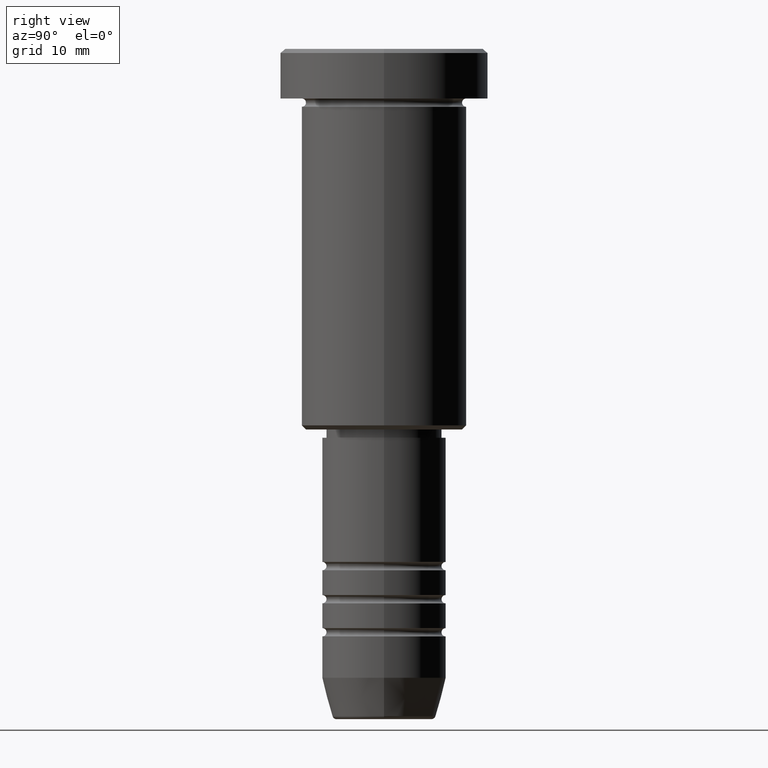
[diagram: clean part render]
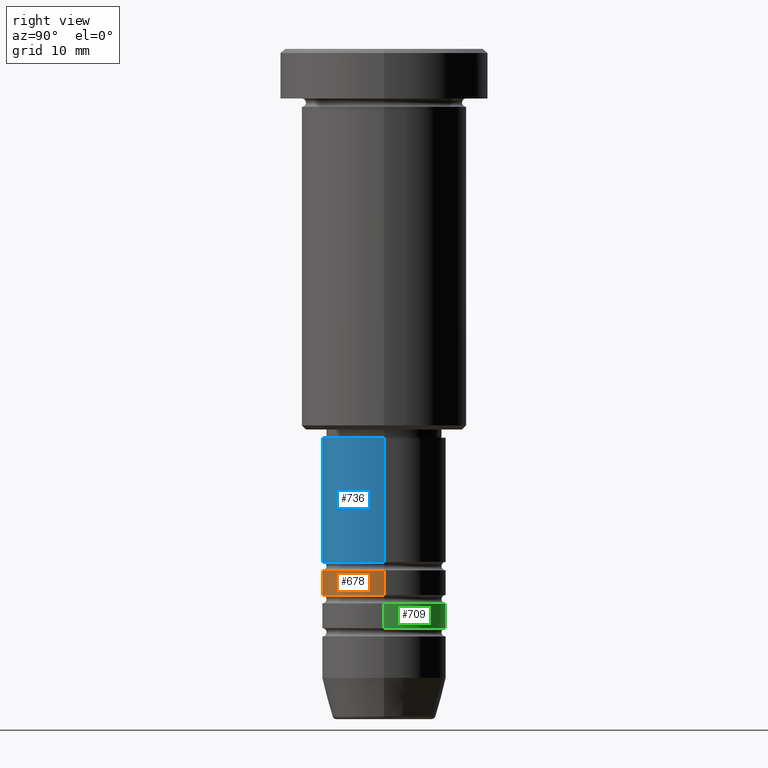
[diagram: same view with three faces highlighted in distinct colors, each labeled with its STEP entity id]
A machine part, right view with three faces highlighted in distinct colors.
Their STEP definitions:

[orange] entity #678 — the highlighted cylindrical surface (partial cylindrical patch) has radius 7.5 mm, axis along (-0, -0, 1).
#1 = EDGE_CURVE ( 'NONE', #1157, #242, #712, .T. ) ;
#9 = AXIS2_PLACEMENT_3D ( 'NONE', #338, #615, #981 ) ;
#24 = EDGE_CURVE ( 'NONE', #491, #242, #238, .T. ) ;
#48 = DIRECTION ( 'NONE',  ( -0.000000000000000000, -0.000000000000000000, 1.000000000000000000 ) ) ;
#76 = FACE_OUTER_BOUND ( 'NONE', #989, .T. ) ;
#109 = VECTOR ( 'NONE', #626, 1000.000000000000000 ) ;
#132 = CIRCLE ( 'NONE', #282, 7.500000000000002665 ) ;
#226 = VECTOR ( 'NONE', #48, 1000.000000000000000 ) ;
#230 = CARTESIAN_POINT ( 'NONE',  ( 7.500000000000000000, 0.000000000000000000, -62.99999999999990052 ) ) ;
#238 = CIRCLE ( 'NONE', #395, 7.500000000000000000 ) ;
#242 = VERTEX_POINT ( 'NONE', #230 ) ;
#251 = CARTESIAN_POINT ( 'NONE',  ( -7.500000000000000000, 9.184850993605147944E-16, -62.99999999999990052 ) ) ;
#282 = AXIS2_PLACEMENT_3D ( 'NONE', #490, #1119, #301 ) ;
#301 = DIRECTION ( 'NONE',  ( 1.000000000000000000, 0.000000000000000000, 0.000000000000000000 ) ) ;
#324 = ORIENTED_EDGE ( 'NONE', *, *, #1027, .T. ) ;
#338 = CARTESIAN_POINT ( 'NONE',  ( 0.000000000000000000, 0.000000000000000000, 0.000000000000000000 ) ) ;
#395 = AXIS2_PLACEMENT_3D ( 'NONE', #916, #977, #436 ) ;
#409 = LINE ( 'NONE', #1139, #226 ) ;
#425 = ORIENTED_EDGE ( 'NONE', *, *, #585, .F. ) ;
#426 = CYLINDRICAL_SURFACE ( 'NONE', #9, 7.500000000000001776 ) ;
#436 = DIRECTION ( 'NONE',  ( 1.000000000000000000, 0.000000000000000000, 0.000000000000000000 ) ) ;
#463 = ORIENTED_EDGE ( 'NONE', *, *, #24, .F. ) ;
#490 = CARTESIAN_POINT ( 'NONE',  ( 0.000000000000000000, 0.000000000000000000, -65.99999999999991473 ) ) ;
#491 = VERTEX_POINT ( 'NONE', #251 ) ;
#585 = EDGE_CURVE ( 'NONE', #799, #491, #409, .T. ) ;
#615 = DIRECTION ( 'NONE',  ( -0.000000000000000000, -0.000000000000000000, 1.000000000000000000 ) ) ;
#626 = DIRECTION ( 'NONE',  ( -0.000000000000000000, -0.000000000000000000, 1.000000000000000000 ) ) ;
#678 = ADVANCED_FACE ( 'NONE', ( #76 ), #426, .T. ) ;
#712 = LINE ( 'NONE', #986, #109 ) ;
#786 = ORIENTED_EDGE ( 'NONE', *, *, #1, .T. ) ;
#799 = VERTEX_POINT ( 'NONE', #894 ) ;
#894 = CARTESIAN_POINT ( 'NONE',  ( -7.500000000000003553, 9.184850993605151889E-16, -65.99999999999991473 ) ) ;
#916 = CARTESIAN_POINT ( 'NONE',  ( 0.000000000000000000, 0.000000000000000000, -62.99999999999990052 ) ) ;
#977 = DIRECTION ( 'NONE',  ( -0.000000000000000000, -0.000000000000000000, 1.000000000000000000 ) ) ;
#981 = DIRECTION ( 'NONE',  ( 1.000000000000000000, 0.000000000000000000, 0.000000000000000000 ) ) ;
#986 = CARTESIAN_POINT ( 'NONE',  ( 7.500000000000001776, 0.000000000000000000, 0.000000000000000000 ) ) ;
#989 = EDGE_LOOP ( 'NONE', ( #425, #324, #786, #463 ) ) ;
#1027 = EDGE_CURVE ( 'NONE', #799, #1157, #132, .T. ) ;
#1119 = DIRECTION ( 'NONE',  ( -0.000000000000000000, -0.000000000000000000, 1.000000000000000000 ) ) ;
#1139 = CARTESIAN_POINT ( 'NONE',  ( -7.500000000000001776, 9.184850993605149917E-16, 0.000000000000000000 ) ) ;
#1157 = VERTEX_POINT ( 'NONE', #1176 ) ;
#1176 = CARTESIAN_POINT ( 'NONE',  ( 7.500000000000002665, 0.000000000000000000, -65.99999999999991473 ) ) ;

[blue] entity #736 — the highlighted cylindrical surface (partial cylindrical patch) has radius 7.5 mm, axis along (-0, -0, 1).
#30 = AXIS2_PLACEMENT_3D ( 'NONE', #859, #750, #1111 ) ;
#44 = DIRECTION ( 'NONE',  ( -0.000000000000000000, -0.000000000000000000, 1.000000000000000000 ) ) ;
#77 = CARTESIAN_POINT ( 'NONE',  ( 7.500000000000000000, 0.000000000000000000, -47.00000000000000711 ) ) ;
#114 = CARTESIAN_POINT ( 'NONE',  ( -7.500000000000001776, 9.184850993605149917E-16, -61.99999999999990052 ) ) ;
#119 = DIRECTION ( 'NONE',  ( -0.000000000000000000, -0.000000000000000000, 1.000000000000000000 ) ) ;
#125 = EDGE_LOOP ( 'NONE', ( #757, #785, #362, #886 ) ) ;
#189 = VECTOR ( 'NONE', #580, 1000.000000000000000 ) ;
#215 = CARTESIAN_POINT ( 'NONE',  ( -7.500000000000000000, 9.184850993605147944E-16, -47.00000000000000711 ) ) ;
#227 = CIRCLE ( 'NONE', #30, 7.500000000000000888 ) ;
#232 = DIRECTION ( 'NONE',  ( 1.000000000000000000, 0.000000000000000000, 0.000000000000000000 ) ) ;
#281 = AXIS2_PLACEMENT_3D ( 'NONE', #610, #342, #1065 ) ;
#319 = VERTEX_POINT ( 'NONE', #779 ) ;
#320 = CARTESIAN_POINT ( 'NONE',  ( 0.000000000000000000, 0.000000000000000000, 0.000000000000000000 ) ) ;
#342 = DIRECTION ( 'NONE',  ( -0.000000000000000000, -0.000000000000000000, 1.000000000000000000 ) ) ;
#344 = VERTEX_POINT ( 'NONE', #77 ) ;
#362 = ORIENTED_EDGE ( 'NONE', *, *, #534, .T. ) ;
#405 = CARTESIAN_POINT ( 'NONE',  ( 7.500000000000000000, 0.000000000000000000, 0.000000000000000000 ) ) ;
#434 = VECTOR ( 'NONE', #119, 1000.000000000000000 ) ;
#524 = AXIS2_PLACEMENT_3D ( 'NONE', #320, #44, #232 ) ;
#534 = EDGE_CURVE ( 'NONE', #319, #344, #591, .T. ) ;
#553 = LINE ( 'NONE', #851, #434 ) ;
#580 = DIRECTION ( 'NONE',  ( -0.000000000000000000, -0.000000000000000000, 1.000000000000000000 ) ) ;
#591 = LINE ( 'NONE', #405, #189 ) ;
#610 = CARTESIAN_POINT ( 'NONE',  ( 0.000000000000000000, 0.000000000000000000, -47.00000000000000711 ) ) ;
#634 = EDGE_CURVE ( 'NONE', #1085, #344, #641, .T. ) ;
#641 = CIRCLE ( 'NONE', #281, 7.500000000000000000 ) ;
#736 = ADVANCED_FACE ( 'NONE', ( #772 ), #1134, .T. ) ;
#750 = DIRECTION ( 'NONE',  ( -0.000000000000000000, -0.000000000000000000, 1.000000000000000000 ) ) ;
#757 = ORIENTED_EDGE ( 'NONE', *, *, #1035, .F. ) ;
#772 = FACE_OUTER_BOUND ( 'NONE', #125, .T. ) ;
#779 = CARTESIAN_POINT ( 'NONE',  ( 7.500000000000000888, 0.000000000000000000, -61.99999999999990052 ) ) ;
#785 = ORIENTED_EDGE ( 'NONE', *, *, #985, .T. ) ;
#851 = CARTESIAN_POINT ( 'NONE',  ( -7.500000000000000000, 9.184850993605147944E-16, 0.000000000000000000 ) ) ;
#859 = CARTESIAN_POINT ( 'NONE',  ( 0.000000000000000000, 0.000000000000000000, -61.99999999999990052 ) ) ;
#886 = ORIENTED_EDGE ( 'NONE', *, *, #634, .F. ) ;
#985 = EDGE_CURVE ( 'NONE', #1012, #319, #227, .T. ) ;
#1012 = VERTEX_POINT ( 'NONE', #114 ) ;
#1035 = EDGE_CURVE ( 'NONE', #1012, #1085, #553, .T. ) ;
#1065 = DIRECTION ( 'NONE',  ( 1.000000000000000000, 0.000000000000000000, 0.000000000000000000 ) ) ;
#1085 = VERTEX_POINT ( 'NONE', #215 ) ;
#1111 = DIRECTION ( 'NONE',  ( 1.000000000000000000, 0.000000000000000000, 0.000000000000000000 ) ) ;
#1134 = CYLINDRICAL_SURFACE ( 'NONE', #524, 7.500000000000000000 ) ;

[green] entity #709 — the highlighted cylindrical surface (partial cylindrical patch) has radius 7.5 mm, axis along (-0, -0, 1).
#19 = EDGE_CURVE ( 'NONE', #133, #686, #755, .T. ) ;
#58 = CARTESIAN_POINT ( 'NONE',  ( 7.500000000000000000, 0.000000000000000000, -66.99999999999988631 ) ) ;
#72 = CARTESIAN_POINT ( 'NONE',  ( 0.000000000000000000, 0.000000000000000000, -69.99999999999990052 ) ) ;
#86 = DIRECTION ( 'NONE',  ( -0.000000000000000000, -0.000000000000000000, 1.000000000000000000 ) ) ;
#89 = EDGE_CURVE ( 'NONE', #133, #716, #283, .T. ) ;
#133 = VERTEX_POINT ( 'NONE', #386 ) ;
#171 = FACE_OUTER_BOUND ( 'NONE', #485, .T. ) ;
#183 = DIRECTION ( 'NONE',  ( 1.000000000000000000, 0.000000000000000000, 0.000000000000000000 ) ) ;
#236 = ORIENTED_EDGE ( 'NONE', *, *, #19, .T. ) ;
#263 = DIRECTION ( 'NONE',  ( -0.000000000000000000, -0.000000000000000000, 1.000000000000000000 ) ) ;
#283 = LINE ( 'NONE', #737, #429 ) ;
#334 = AXIS2_PLACEMENT_3D ( 'NONE', #710, #263, #358 ) ;
#358 = DIRECTION ( 'NONE',  ( 1.000000000000000000, 0.000000000000000000, 0.000000000000000000 ) ) ;
#386 = CARTESIAN_POINT ( 'NONE',  ( 7.500000000000000888, 0.000000000000000000, -69.99999999999990052 ) ) ;
#404 = ORIENTED_EDGE ( 'NONE', *, *, #1147, .T. ) ;
#429 = VECTOR ( 'NONE', #664, 1000.000000000000000 ) ;
#485 = EDGE_LOOP ( 'NONE', ( #236, #404, #962, #939 ) ) ;
#523 = CARTESIAN_POINT ( 'NONE',  ( -7.500000000000000000, 9.184850993605147944E-16, -66.99999999999988631 ) ) ;
#538 = CARTESIAN_POINT ( 'NONE',  ( -7.500000000000001776, 9.184850993605149917E-16, -69.99999999999990052 ) ) ;
#609 = EDGE_CURVE ( 'NONE', #716, #1142, #983, .T. ) ;
#612 = DIRECTION ( 'NONE',  ( -0.000000000000000000, -0.000000000000000000, 1.000000000000000000 ) ) ;
#628 = CARTESIAN_POINT ( 'NONE',  ( -7.500000000000000000, 9.184850993605147944E-16, 0.000000000000000000 ) ) ;
#630 = CYLINDRICAL_SURFACE ( 'NONE', #839, 7.500000000000000000 ) ;
#664 = DIRECTION ( 'NONE',  ( -0.000000000000000000, -0.000000000000000000, 1.000000000000000000 ) ) ;
#686 = VERTEX_POINT ( 'NONE', #538 ) ;
#709 = ADVANCED_FACE ( 'NONE', ( #171 ), #630, .T. ) ;
#710 = CARTESIAN_POINT ( 'NONE',  ( 0.000000000000000000, 0.000000000000000000, -66.99999999999988631 ) ) ;
#716 = VERTEX_POINT ( 'NONE', #58 ) ;
#737 = CARTESIAN_POINT ( 'NONE',  ( 7.500000000000000000, 0.000000000000000000, 0.000000000000000000 ) ) ;
#755 = CIRCLE ( 'NONE', #926, 7.500000000000000888 ) ;
#839 = AXIS2_PLACEMENT_3D ( 'NONE', #1059, #1071, #183 ) ;
#926 = AXIS2_PLACEMENT_3D ( 'NONE', #72, #612, #992 ) ;
#939 = ORIENTED_EDGE ( 'NONE', *, *, #89, .F. ) ;
#962 = ORIENTED_EDGE ( 'NONE', *, *, #609, .F. ) ;
#983 = CIRCLE ( 'NONE', #334, 7.500000000000000000 ) ;
#992 = DIRECTION ( 'NONE',  ( 1.000000000000000000, 0.000000000000000000, 0.000000000000000000 ) ) ;
#1031 = VECTOR ( 'NONE', #86, 1000.000000000000000 ) ;
#1059 = CARTESIAN_POINT ( 'NONE',  ( 0.000000000000000000, 0.000000000000000000, 0.000000000000000000 ) ) ;
#1071 = DIRECTION ( 'NONE',  ( -0.000000000000000000, -0.000000000000000000, 1.000000000000000000 ) ) ;
#1078 = LINE ( 'NONE', #628, #1031 ) ;
#1142 = VERTEX_POINT ( 'NONE', #523 ) ;
#1147 = EDGE_CURVE ( 'NONE', #686, #1142, #1078, .T. ) ;